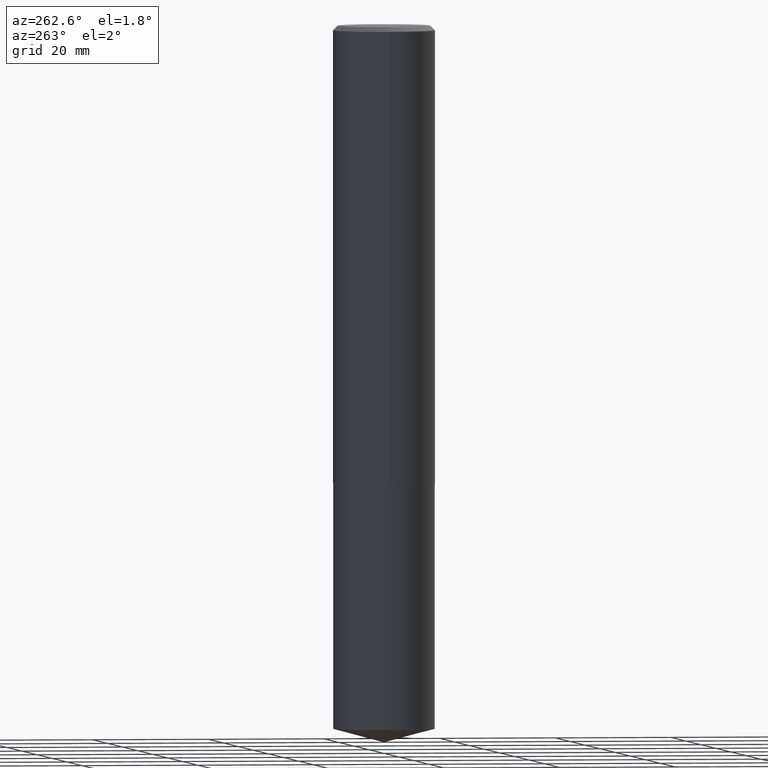
[diagram: clean part render]
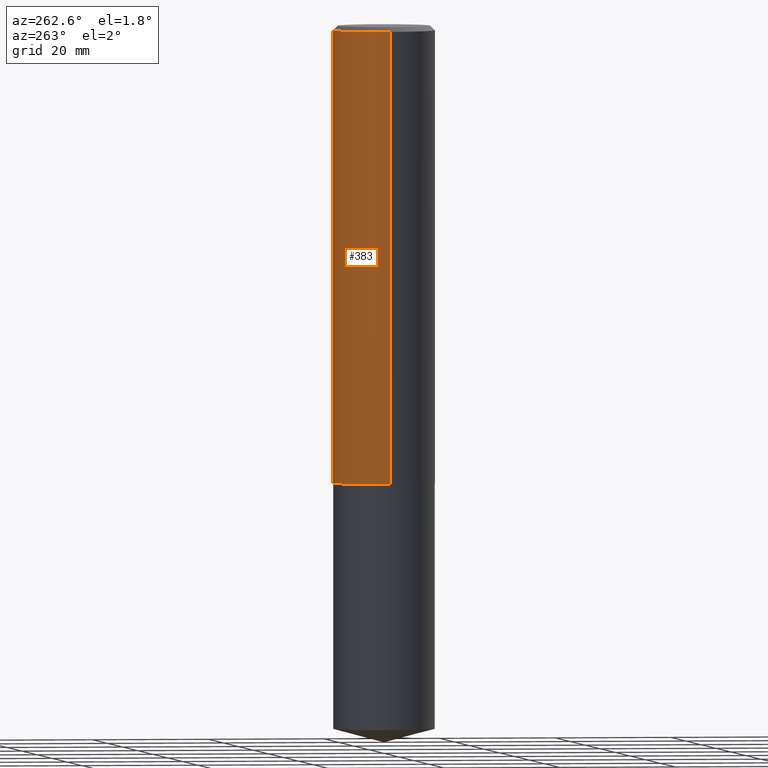
[diagram: same view with one face highlighted and labeled with its STEP entity id]
A machine part, auxiliary view. The second image highlights one B-rep face of the part: STEP entity #383.
In plain terms, the highlighted cylindrical surface (partial cylindrical patch) has radius 8.7503 mm, axis along (-0, 0, 1).
Its self-contained STEP definition (entity closure, byte-faithful):
#23 = ORIENTED_EDGE ( 'NONE', *, *, #27, .T. ) ;
#27 = EDGE_CURVE ( 'NONE', #349, #293, #126, .T. ) ;
#41 = CIRCLE ( 'NONE', #256, 0.3445000000000000284 ) ;
#49 = DIRECTION ( 'NONE',  ( -2.445468806185136597E-29, 3.491481338843145583E-15, 1.000000000000000000 ) ) ;
#56 = EDGE_LOOP ( 'NONE', ( #231, #23, #239, #257 ) ) ;
#65 = AXIS2_PLACEMENT_3D ( 'NONE', #159, #237, #379 ) ;
#86 = VERTEX_POINT ( 'NONE', #287 ) ;
#88 = VECTOR ( 'NONE', #164, 39.37007874015748143 ) ;
#107 = CARTESIAN_POINT ( 'NONE',  ( 0.3445000000000000839, -2.405630642462919876E-15, 1.679842899261700335E-29 ) ) ;
#121 = CARTESIAN_POINT ( 'NONE',  ( -0.3445000000000000284, -3.001247913805480378E-15, -0.03125000000000018735 ) ) ;
#126 = LINE ( 'NONE', #132, #275 ) ;
#131 = VERTEX_POINT ( 'NONE', #229 ) ;
#132 = CARTESIAN_POINT ( 'NONE',  ( -0.3445000000000000839, 2.447819724693545737E-15, -1.694573138592815289E-29 ) ) ;
#136 = CARTESIAN_POINT ( 'NONE',  ( 7.642090019328597407E-31, -1.091087918388489527E-16, -0.03125000000000018735 ) ) ;
#139 = AXIS2_PLACEMENT_3D ( 'NONE', #148, #328, #298 ) ;
#148 = CARTESIAN_POINT ( 'NONE',  ( 0.000000000000000000, 0.000000000000000000, 0.000000000000000000 ) ) ;
#159 = CARTESIAN_POINT ( 'NONE',  ( 7.556743157992690241E-29, -1.078902648515920471E-14, -3.090100000000000069 ) ) ;
#164 = DIRECTION ( 'NONE',  ( -2.445468806185136877E-29, 3.491481338843145188E-15, 1.000000000000000000 ) ) ;
#171 = FACE_OUTER_BOUND ( 'NONE', #56, .T. ) ;
#201 = EDGE_CURVE ( 'NONE', #131, #293, #41, .T. ) ;
#210 = EDGE_CURVE ( 'NONE', #86, #131, #373, .T. ) ;
#223 = DIRECTION ( 'NONE',  ( -2.445468806185136877E-29, 3.491481338843145188E-15, 1.000000000000000000 ) ) ;
#229 = CARTESIAN_POINT ( 'NONE',  ( 0.3445000000000000284, -2.514739434301768188E-15, -0.03125000000000018735 ) ) ;
#231 = ORIENTED_EDGE ( 'NONE', *, *, #354, .T. ) ;
#235 = CIRCLE ( 'NONE', #65, 0.3445000000000002505 ) ;
#237 = DIRECTION ( 'NONE',  ( -2.445468806185136597E-29, 3.491481338843145583E-15, 1.000000000000000000 ) ) ;
#239 = ORIENTED_EDGE ( 'NONE', *, *, #201, .F. ) ;
#255 = DIRECTION ( 'NONE',  ( 1.000000000000000000, -6.982962677686267499E-15, 0.000000000000000000 ) ) ;
#256 = AXIS2_PLACEMENT_3D ( 'NONE', #136, #49, #255 ) ;
#257 = ORIENTED_EDGE ( 'NONE', *, *, #210, .F. ) ;
#275 = VECTOR ( 'NONE', #223, 39.37007874015748143 ) ;
#287 = CARTESIAN_POINT ( 'NONE',  ( 0.3445000000000002505, -1.319465712762212498E-14, -3.090100000000000069 ) ) ;
#293 = VERTEX_POINT ( 'NONE', #121 ) ;
#298 = DIRECTION ( 'NONE',  ( 1.000000000000000000, -6.982962677686268288E-15, 4.876176775795935793E-29 ) ) ;
#303 = CYLINDRICAL_SURFACE ( 'NONE', #139, 0.3445000000000000839 ) ;
#316 = CARTESIAN_POINT ( 'NONE',  ( -0.3445000000000002505, -8.341206760465657787E-15, -3.090100000000000069 ) ) ;
#328 = DIRECTION ( 'NONE',  ( -2.445468806185136597E-29, 3.491481338843145583E-15, 1.000000000000000000 ) ) ;
#349 = VERTEX_POINT ( 'NONE', #316 ) ;
#354 = EDGE_CURVE ( 'NONE', #86, #349, #235, .T. ) ;
#373 = LINE ( 'NONE', #107, #88 ) ;
#379 = DIRECTION ( 'NONE',  ( 1.000000000000000000, -6.982962677686264344E-15, 0.000000000000000000 ) ) ;
#383 = ADVANCED_FACE ( 'NONE', ( #171 ), #303, .T. ) ;